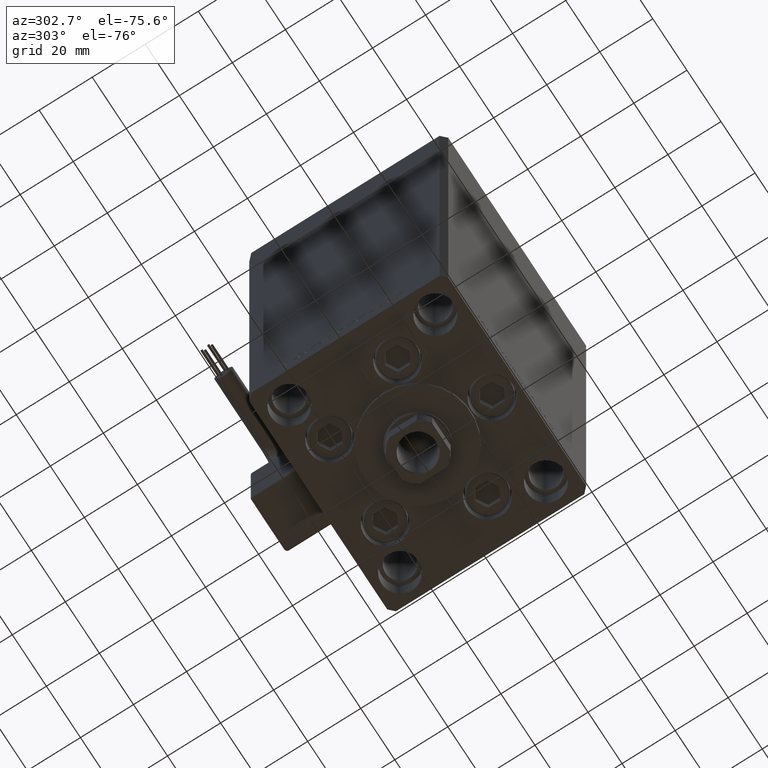
[diagram: clean part render]
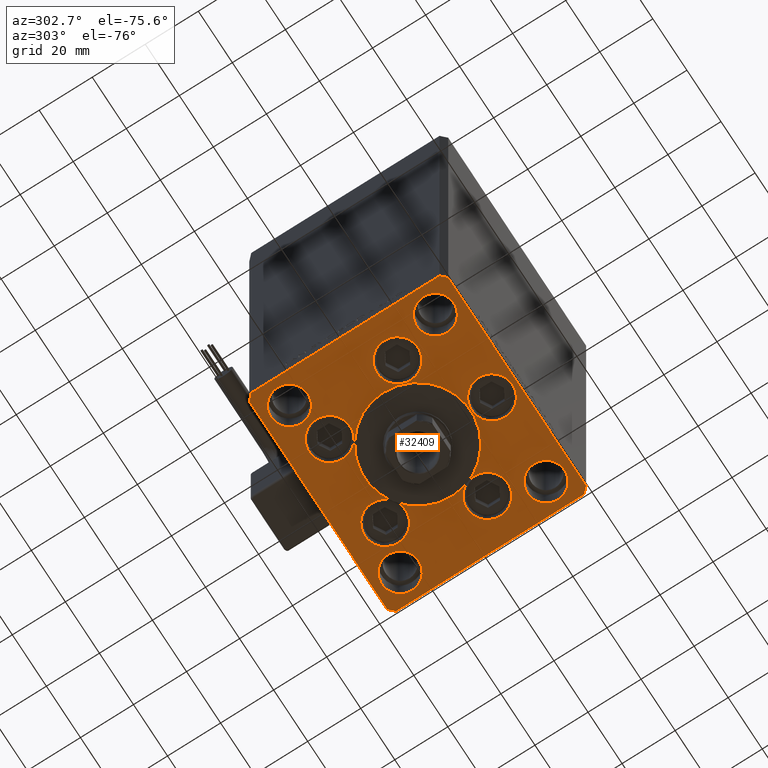
[diagram: same view with one face highlighted and labeled with its STEP entity id]
A machine part, auxiliary view. The second image highlights one B-rep face of the part: STEP entity #32409.
In plain terms, the highlighted planar face has unit normal (0, 0, -1).
Its self-contained STEP definition (entity closure, byte-faithful):
#194 = CARTESIAN_POINT ( 'NONE',  ( 40.50000000000000711, 37.50000000000000711, 0.000000000000000000 ) ) ;
#232 = DIRECTION ( 'NONE',  ( -0.000000000000000000, 0.000000000000000000, 1.000000000000000000 ) ) ;
#251 = EDGE_CURVE ( 'NONE', #35752, #2730, #36892, .T. ) ;
#716 = CIRCLE ( 'NONE', #16752, 6.999999999999999112 ) ;
#729 = CARTESIAN_POINT ( 'NONE',  ( 42.50000000000000711, -35.49999999999992895, 0.000000000000000000 ) ) ;
#955 = DIRECTION ( 'NONE',  ( 0.000000000000000000, 0.000000000000000000, 1.000000000000000000 ) ) ;
#1133 = CARTESIAN_POINT ( 'NONE',  ( -42.50000000000000000, -35.50000000000004263, 0.000000000000000000 ) ) ;
#1559 = CIRCLE ( 'NONE', #48775, 20.00000000000000000 ) ;
#1885 = CARTESIAN_POINT ( 'NONE',  ( 8.572913342905442491, 22.74999999999999289, 0.000000000000000000 ) ) ;
#2234 = VERTEX_POINT ( 'NONE', #24833 ) ;
#2453 = AXIS2_PLACEMENT_3D ( 'NONE', #5156, #25738, #30194 ) ;
#2730 = VERTEX_POINT ( 'NONE', #9836 ) ;
#2865 = EDGE_CURVE ( 'NONE', #48660, #16624, #1559, .T. ) ;
#3081 = VERTEX_POINT ( 'NONE', #39270 ) ;
#3427 = EDGE_CURVE ( 'NONE', #39209, #7382, #25947, .T. ) ;
#3712 = VERTEX_POINT ( 'NONE', #22036 ) ;
#3989 = ORIENTED_EDGE ( 'NONE', *, *, #11561, .F. ) ;
#4034 = CARTESIAN_POINT ( 'NONE',  ( 25.50000000000000355, 27.49999999999999645, 0.000000000000000000 ) ) ;
#4043 = VERTEX_POINT ( 'NONE', #17636 ) ;
#4199 = FACE_BOUND ( 'NONE', #21041, .T. ) ;
#4391 = DIRECTION ( 'NONE',  ( 1.000000000000000000, 0.000000000000000000, 0.000000000000000000 ) ) ;
#5010 = EDGE_LOOP ( 'NONE', ( #3989, #9957 ) ) ;
#5156 = CARTESIAN_POINT ( 'NONE',  ( -32.50000000000000000, -27.50000000000000355, 0.000000000000000000 ) ) ;
#5828 = VERTEX_POINT ( 'NONE', #21992 ) ;
#6230 = DIRECTION ( 'NONE',  ( -1.000000000000000000, -4.283267841918041508E-16, 0.000000000000000000 ) ) ;
#6385 = CARTESIAN_POINT ( 'NONE',  ( 20.00000000000000000, -4.489600305612522259E-15, 0.000000000000000000 ) ) ;
#6935 = DIRECTION ( 'NONE',  ( 0.000000000000000000, 0.000000000000000000, 1.000000000000000000 ) ) ;
#6986 = ORIENTED_EDGE ( 'NONE', *, *, #42791, .F. ) ;
#7059 = AXIS2_PLACEMENT_3D ( 'NONE', #20579, #232, #48020 ) ;
#7315 = DIRECTION ( 'NONE',  ( 0.000000000000000000, 0.000000000000000000, 1.000000000000000000 ) ) ;
#7382 = VERTEX_POINT ( 'NONE', #48632 ) ;
#7807 = DIRECTION ( 'NONE',  ( 0.000000000000000000, 0.000000000000000000, 1.000000000000000000 ) ) ;
#8019 = ORIENTED_EDGE ( 'NONE', *, *, #27601, .F. ) ;
#8091 = EDGE_CURVE ( 'NONE', #15262, #27786, #25235, .T. ) ;
#8633 = DIRECTION ( 'NONE',  ( 0.000000000000000000, 0.000000000000000000, 1.000000000000000000 ) ) ;
#8682 = VECTOR ( 'NONE', #16788, 1000.000000000000000 ) ;
#8683 = LINE ( 'NONE', #16346, #33595 ) ;
#8943 = FACE_BOUND ( 'NONE', #9853, .T. ) ;
#9123 = CARTESIAN_POINT ( 'NONE',  ( 40.50000000000001421, -37.49999999999992184, 0.000000000000000000 ) ) ;
#9136 = CIRCLE ( 'NONE', #20094, 6.999999999999999112 ) ;
#9836 = CARTESIAN_POINT ( 'NONE',  ( 25.50000000000000355, -27.50000000000000355, 0.000000000000000000 ) ) ;
#9853 = EDGE_LOOP ( 'NONE', ( #19588, #17814 ) ) ;
#9911 = EDGE_CURVE ( 'NONE', #5828, #3081, #47226, .T. ) ;
#9957 = ORIENTED_EDGE ( 'NONE', *, *, #40536, .F. ) ;
#10069 = DIRECTION ( 'NONE',  ( 0.000000000000000000, 0.000000000000000000, 1.000000000000000000 ) ) ;
#10261 = CARTESIAN_POINT ( 'NONE',  ( -8.572913342905440715, 22.74999999999999289, 0.000000000000000000 ) ) ;
#10262 = EDGE_CURVE ( 'NONE', #27786, #15262, #45549, .T. ) ;
#11165 = EDGE_CURVE ( 'NONE', #4043, #36309, #14039, .T. ) ;
#11500 = CARTESIAN_POINT ( 'NONE',  ( 26.39865316429777664, -9.333333333333330373, 0.000000000000000000 ) ) ;
#11561 = EDGE_CURVE ( 'NONE', #3712, #22591, #16943, .T. ) ;
#11595 = DIRECTION ( 'NONE',  ( 1.000000000000000000, 1.370645709413773283E-15, 0.000000000000000000 ) ) ;
#12145 = DIRECTION ( 'NONE',  ( 9.773090005503134168E-17, -1.000000000000000000, 0.000000000000000000 ) ) ;
#12173 = CARTESIAN_POINT ( 'NONE',  ( 42.50000000000000711, -35.49999999999992895, 0.000000000000000000 ) ) ;
#12193 = VERTEX_POINT ( 'NONE', #1133 ) ;
#12232 = CIRCLE ( 'NONE', #21544, 6.999999999999999112 ) ;
#12295 = CARTESIAN_POINT ( 'NONE',  ( -42.50000000000000000, -35.50000000000004263, 0.000000000000000000 ) ) ;
#12486 = AXIS2_PLACEMENT_3D ( 'NONE', #51703, #15549, #47735 ) ;
#12939 = CARTESIAN_POINT ( 'NONE',  ( -42.50000000000000711, 35.50000000000000000, 0.000000000000000000 ) ) ;
#13268 = CARTESIAN_POINT ( 'NONE',  ( 42.50000000000001421, 35.50000000000002132, 0.000000000000000000 ) ) ;
#13651 = CARTESIAN_POINT ( 'NONE',  ( -26.39865316429777664, -9.333333333333330373, 0.000000000000000000 ) ) ;
#13761 = EDGE_CURVE ( 'NONE', #47249, #39765, #41453, .T. ) ;
#13909 = ORIENTED_EDGE ( 'NONE', *, *, #9911, .F. ) ;
#13981 = DIRECTION ( 'NONE',  ( 1.000000000000000000, 0.000000000000000000, 0.000000000000000000 ) ) ;
#14039 = LINE ( 'NONE', #13268, #35449 ) ;
#14178 = CARTESIAN_POINT ( 'NONE',  ( -40.50000000000000000, 37.49999999999997158, 0.000000000000000000 ) ) ;
#14333 = DIRECTION ( 'NONE',  ( 1.000000000000000000, 0.000000000000000000, 0.000000000000000000 ) ) ;
#14504 = CARTESIAN_POINT ( 'NONE',  ( 16.32291334290544071, 22.74999999999999289, 0.000000000000000000 ) ) ;
#14613 = CIRCLE ( 'NONE', #48332, 6.999999999999999112 ) ;
#14725 = EDGE_LOOP ( 'NONE', ( #44977, #49217 ) ) ;
#14836 = VECTOR ( 'NONE', #46894, 1000.000000000000000 ) ;
#15052 = LINE ( 'NONE', #31129, #50134 ) ;
#15174 = CARTESIAN_POINT ( 'NONE',  ( 0.000000000000000000, -28.00000000000000000, 0.000000000000000000 ) ) ;
#15262 = VERTEX_POINT ( 'NONE', #32851 ) ;
#15355 = AXIS2_PLACEMENT_3D ( 'NONE', #45888, #17134, #41896 ) ;
#15549 = DIRECTION ( 'NONE',  ( 0.000000000000000000, 0.000000000000000000, 1.000000000000000000 ) ) ;
#16034 = EDGE_CURVE ( 'NONE', #12193, #16428, #20744, .T. ) ;
#16346 = CARTESIAN_POINT ( 'NONE',  ( 40.50000000000001421, -37.49999999999992184, 0.000000000000000000 ) ) ;
#16428 = VERTEX_POINT ( 'NONE', #36230 ) ;
#16611 = FACE_BOUND ( 'NONE', #50195, .T. ) ;
#16624 = VERTEX_POINT ( 'NONE', #6385 ) ;
#16747 = ORIENTED_EDGE ( 'NONE', *, *, #27173, .F. ) ;
#16752 = AXIS2_PLACEMENT_3D ( 'NONE', #34000, #46152, #34778 ) ;
#16753 = ORIENTED_EDGE ( 'NONE', *, *, #16034, .T. ) ;
#16788 = DIRECTION ( 'NONE',  ( 0.7071067811865487940, -0.7071067811865463515, 0.000000000000000000 ) ) ;
#16943 = CIRCLE ( 'NONE', #46430, 7.750000000000000000 ) ;
#16968 = DIRECTION ( 'NONE',  ( -0.7071067811865524577, 0.7071067811865426878, 0.000000000000000000 ) ) ;
#17134 = DIRECTION ( 'NONE',  ( 0.000000000000000000, 0.000000000000000000, 1.000000000000000000 ) ) ;
#17152 = CIRCLE ( 'NONE', #33148, 7.750000000000000000 ) ;
#17636 = CARTESIAN_POINT ( 'NONE',  ( 42.50000000000001421, 35.50000000000002132, 0.000000000000000000 ) ) ;
#17814 = ORIENTED_EDGE ( 'NONE', *, *, #8091, .F. ) ;
#18293 = CIRCLE ( 'NONE', #27549, 6.999999999999999112 ) ;
#18333 = AXIS2_PLACEMENT_3D ( 'NONE', #26363, #46422, #18441 ) ;
#18441 = DIRECTION ( 'NONE',  ( 1.000000000000000000, 0.000000000000000000, 0.000000000000000000 ) ) ;
#18656 = ORIENTED_EDGE ( 'NONE', *, *, #38643, .F. ) ;
#18767 = ORIENTED_EDGE ( 'NONE', *, *, #24979, .T. ) ;
#18792 = VERTEX_POINT ( 'NONE', #729 ) ;
#18923 = LINE ( 'NONE', #14178, #14836 ) ;
#19075 = ORIENTED_EDGE ( 'NONE', *, *, #22394, .F. ) ;
#19267 = AXIS2_PLACEMENT_3D ( 'NONE', #43220, #7315, #31839 ) ;
#19424 = ORIENTED_EDGE ( 'NONE', *, *, #42467, .F. ) ;
#19588 = ORIENTED_EDGE ( 'NONE', *, *, #10262, .F. ) ;
#20094 = AXIS2_PLACEMENT_3D ( 'NONE', #48555, #6935, #40628 ) ;
#20153 = VECTOR ( 'NONE', #6230, 1000.000000000000000 ) ;
#20167 = DIRECTION ( 'NONE',  ( 0.000000000000000000, 0.000000000000000000, 1.000000000000000000 ) ) ;
#20238 = EDGE_LOOP ( 'NONE', ( #50830, #32247 ) ) ;
#20452 = DIRECTION ( 'NONE',  ( 0.000000000000000000, 0.000000000000000000, 1.000000000000000000 ) ) ;
#20579 = CARTESIAN_POINT ( 'NONE',  ( 0.000000000000000000, 0.000000000000000000, 0.000000000000000000 ) ) ;
#20596 = ORIENTED_EDGE ( 'NONE', *, *, #34408, .F. ) ;
#20713 = EDGE_LOOP ( 'NONE', ( #13909, #8019 ) ) ;
#20744 = LINE ( 'NONE', #12295, #8682 ) ;
#20831 = FACE_BOUND ( 'NONE', #5010, .T. ) ;
#20981 = VERTEX_POINT ( 'NONE', #29028 ) ;
#21041 = EDGE_LOOP ( 'NONE', ( #19424, #18656 ) ) ;
#21544 = AXIS2_PLACEMENT_3D ( 'NONE', #28880, #20452, #24124 ) ;
#21820 = VERTEX_POINT ( 'NONE', #30843 ) ;
#21864 = EDGE_LOOP ( 'NONE', ( #26210, #47386 ) ) ;
#21992 = CARTESIAN_POINT ( 'NONE',  ( 7.750000000000000000, -28.00000000000000000, 0.000000000000000000 ) ) ;
#22036 = CARTESIAN_POINT ( 'NONE',  ( 24.07291334290544071, 22.74999999999999289, 0.000000000000000000 ) ) ;
#22064 = CARTESIAN_POINT ( 'NONE',  ( -39.50000000000000000, 27.50000000000000711, 0.000000000000000000 ) ) ;
#22394 = EDGE_CURVE ( 'NONE', #44136, #31988, #49810, .T. ) ;
#22591 = VERTEX_POINT ( 'NONE', #1885 ) ;
#23333 = DIRECTION ( 'NONE',  ( 1.000000000000000000, 0.000000000000000000, 0.000000000000000000 ) ) ;
#23429 = CIRCLE ( 'NONE', #19267, 7.750000000000000000 ) ;
#23674 = VERTEX_POINT ( 'NONE', #4034 ) ;
#23991 = FACE_BOUND ( 'NONE', #20713, .T. ) ;
#24124 = DIRECTION ( 'NONE',  ( 1.000000000000000000, 0.000000000000000000, 0.000000000000000000 ) ) ;
#24301 = VERTEX_POINT ( 'NONE', #9123 ) ;
#24457 = AXIS2_PLACEMENT_3D ( 'NONE', #30337, #29833, #41694 ) ;
#24692 = ORIENTED_EDGE ( 'NONE', *, *, #36388, .T. ) ;
#24833 = CARTESIAN_POINT ( 'NONE',  ( -25.50000000000000355, 27.50000000000000711, 0.000000000000000000 ) ) ;
#24942 = ORIENTED_EDGE ( 'NONE', *, *, #46843, .T. ) ;
#24979 = EDGE_CURVE ( 'NONE', #18792, #4043, #32736, .T. ) ;
#25045 = PLANE ( 'NONE',  #7059 ) ;
#25235 = CIRCLE ( 'NONE', #2453, 6.999999999999999112 ) ;
#25699 = ORIENTED_EDGE ( 'NONE', *, *, #48151, .T. ) ;
#25738 = DIRECTION ( 'NONE',  ( 0.000000000000000000, 0.000000000000000000, 1.000000000000000000 ) ) ;
#25947 = CIRCLE ( 'NONE', #33499, 7.750000000000000000 ) ;
#25974 = CARTESIAN_POINT ( 'NONE',  ( 18.64865316429777664, -9.333333333333328596, 0.000000000000000000 ) ) ;
#26175 = DIRECTION ( 'NONE',  ( 1.000000000000000000, 0.000000000000000000, 0.000000000000000000 ) ) ;
#26204 = DIRECTION ( 'NONE',  ( 0.000000000000000000, 0.000000000000000000, 1.000000000000000000 ) ) ;
#26210 = ORIENTED_EDGE ( 'NONE', *, *, #2865, .F. ) ;
#26363 = CARTESIAN_POINT ( 'NONE',  ( 32.50000000000000000, -27.50000000000000355, 0.000000000000000000 ) ) ;
#26553 = ORIENTED_EDGE ( 'NONE', *, *, #43670, .T. ) ;
#26587 = VERTEX_POINT ( 'NONE', #35021 ) ;
#27173 = EDGE_CURVE ( 'NONE', #35023, #2234, #14613, .T. ) ;
#27549 = AXIS2_PLACEMENT_3D ( 'NONE', #32357, #955, #4391 ) ;
#27601 = EDGE_CURVE ( 'NONE', #3081, #5828, #17152, .T. ) ;
#27786 = VERTEX_POINT ( 'NONE', #51739 ) ;
#28143 = CARTESIAN_POINT ( 'NONE',  ( -24.07291334290544071, 22.74999999999999289, 0.000000000000000000 ) ) ;
#28880 = CARTESIAN_POINT ( 'NONE',  ( 32.50000000000000000, -27.50000000000000355, 0.000000000000000000 ) ) ;
#29010 = FACE_BOUND ( 'NONE', #21864, .T. ) ;
#29028 = CARTESIAN_POINT ( 'NONE',  ( -40.50000000000000000, 37.49999999999997158, 0.000000000000000000 ) ) ;
#29833 = DIRECTION ( 'NONE',  ( 0.000000000000000000, 0.000000000000000000, 1.000000000000000000 ) ) ;
#29932 = EDGE_CURVE ( 'NONE', #16624, #48660, #30689, .T. ) ;
#30158 = ORIENTED_EDGE ( 'NONE', *, *, #11165, .T. ) ;
#30194 = DIRECTION ( 'NONE',  ( 1.000000000000000000, 0.000000000000000000, 0.000000000000000000 ) ) ;
#30238 = LINE ( 'NONE', #30505, #20153 ) ;
#30337 = CARTESIAN_POINT ( 'NONE',  ( -32.50000000000000000, -27.50000000000000355, 0.000000000000000000 ) ) ;
#30505 = CARTESIAN_POINT ( 'NONE',  ( 40.50000000000000711, 37.50000000000000711, 0.000000000000000000 ) ) ;
#30689 = CIRCLE ( 'NONE', #40817, 20.00000000000000000 ) ;
#30843 = CARTESIAN_POINT ( 'NONE',  ( 39.50000000000000000, 27.49999999999999645, 0.000000000000000000 ) ) ;
#31129 = CARTESIAN_POINT ( 'NONE',  ( -40.50000000000000711, -37.50000000000003553, 0.000000000000000000 ) ) ;
#31782 = CIRCLE ( 'NONE', #12486, 7.750000000000000000 ) ;
#31839 = DIRECTION ( 'NONE',  ( 1.000000000000000000, 0.000000000000000000, 0.000000000000000000 ) ) ;
#31988 = VERTEX_POINT ( 'NONE', #49137 ) ;
#32163 = DIRECTION ( 'NONE',  ( 0.7071067811865474617, 0.7071067811865474617, 0.000000000000000000 ) ) ;
#32192 = LINE ( 'NONE', #12939, #39401 ) ;
#32247 = ORIENTED_EDGE ( 'NONE', *, *, #35116, .F. ) ;
#32357 = CARTESIAN_POINT ( 'NONE',  ( 32.50000000000000000, 27.49999999999999645, 0.000000000000000000 ) ) ;
#32409 = ADVANCED_FACE ( 'NONE', ( #29010, #48544, #20831, #40875, #23991, #40615, #4199, #16611, #8943, #32954, #36389 ), #25045, .T. ) ;
#32514 = DIRECTION ( 'NONE',  ( 0.000000000000000000, 0.000000000000000000, 1.000000000000000000 ) ) ;
#32538 = DIRECTION ( 'NONE',  ( 0.000000000000000000, 0.000000000000000000, 1.000000000000000000 ) ) ;
#32736 = LINE ( 'NONE', #12173, #44862 ) ;
#32851 = CARTESIAN_POINT ( 'NONE',  ( -39.50000000000000000, -27.50000000000000355, 0.000000000000000000 ) ) ;
#32954 = FACE_BOUND ( 'NONE', #20238, .T. ) ;
#33114 = ORIENTED_EDGE ( 'NONE', *, *, #41715, .F. ) ;
#33148 = AXIS2_PLACEMENT_3D ( 'NONE', #15174, #20167, #23333 ) ;
#33499 = AXIS2_PLACEMENT_3D ( 'NONE', #11500, #7807, #47669 ) ;
#33595 = VECTOR ( 'NONE', #32163, 1000.000000000000114 ) ;
#34000 = CARTESIAN_POINT ( 'NONE',  ( -32.50000000000000000, 27.50000000000000711, 0.000000000000000000 ) ) ;
#34202 = EDGE_LOOP ( 'NONE', ( #6986, #19075 ) ) ;
#34408 = EDGE_CURVE ( 'NONE', #39765, #47249, #44246, .T. ) ;
#34425 = EDGE_CURVE ( 'NONE', #16428, #24301, #15052, .T. ) ;
#34778 = DIRECTION ( 'NONE',  ( 1.000000000000000000, 0.000000000000000000, 0.000000000000000000 ) ) ;
#35021 = CARTESIAN_POINT ( 'NONE',  ( -42.50000000000000711, 35.50000000000000000, 0.000000000000000000 ) ) ;
#35023 = VERTEX_POINT ( 'NONE', #22064 ) ;
#35085 = CARTESIAN_POINT ( 'NONE',  ( -16.32291334290544071, 22.74999999999999289, 0.000000000000000000 ) ) ;
#35116 = EDGE_CURVE ( 'NONE', #2730, #35752, #12232, .T. ) ;
#35351 = DIRECTION ( 'NONE',  ( 0.000000000000000000, 0.000000000000000000, 1.000000000000000000 ) ) ;
#35449 = VECTOR ( 'NONE', #16968, 1000.000000000000000 ) ;
#35610 = DIRECTION ( 'NONE',  ( 1.000000000000000000, 0.000000000000000000, 0.000000000000000000 ) ) ;
#35752 = VERTEX_POINT ( 'NONE', #49533 ) ;
#36230 = CARTESIAN_POINT ( 'NONE',  ( -40.50000000000000711, -37.50000000000003553, 0.000000000000000000 ) ) ;
#36309 = VERTEX_POINT ( 'NONE', #194 ) ;
#36388 = EDGE_CURVE ( 'NONE', #20981, #26587, #18923, .T. ) ;
#36389 = FACE_OUTER_BOUND ( 'NONE', #44196, .T. ) ;
#36892 = CIRCLE ( 'NONE', #18333, 6.999999999999999112 ) ;
#37287 = CARTESIAN_POINT ( 'NONE',  ( 0.000000000000000000, -28.00000000000000000, 0.000000000000000000 ) ) ;
#37849 = CARTESIAN_POINT ( 'NONE',  ( -34.14865316429777664, -9.333333333333328596, 0.000000000000000000 ) ) ;
#38490 = DIRECTION ( 'NONE',  ( 0.000000000000000000, 0.000000000000000000, 1.000000000000000000 ) ) ;
#38643 = EDGE_CURVE ( 'NONE', #23674, #21820, #18293, .T. ) ;
#38821 = AXIS2_PLACEMENT_3D ( 'NONE', #40165, #32514, #48374 ) ;
#39209 = VERTEX_POINT ( 'NONE', #25974 ) ;
#39270 = CARTESIAN_POINT ( 'NONE',  ( -7.750000000000000000, -28.00000000000000000, 0.000000000000000000 ) ) ;
#39401 = VECTOR ( 'NONE', #12145, 1000.000000000000000 ) ;
#39765 = VERTEX_POINT ( 'NONE', #10261 ) ;
#40165 = CARTESIAN_POINT ( 'NONE',  ( -26.39865316429777664, -9.333333333333330373, 0.000000000000000000 ) ) ;
#40458 = DIRECTION ( 'NONE',  ( 1.000000000000000000, 0.000000000000000000, 0.000000000000000000 ) ) ;
#40536 = EDGE_CURVE ( 'NONE', #22591, #3712, #31782, .T. ) ;
#40615 = FACE_BOUND ( 'NONE', #34202, .T. ) ;
#40628 = DIRECTION ( 'NONE',  ( 1.000000000000000000, 0.000000000000000000, 0.000000000000000000 ) ) ;
#40817 = AXIS2_PLACEMENT_3D ( 'NONE', #46502, #10069, #26175 ) ;
#40875 = FACE_BOUND ( 'NONE', #14725, .T. ) ;
#41453 = CIRCLE ( 'NONE', #15355, 7.750000000000000000 ) ;
#41694 = DIRECTION ( 'NONE',  ( 1.000000000000000000, 0.000000000000000000, 0.000000000000000000 ) ) ;
#41715 = EDGE_CURVE ( 'NONE', #2234, #35023, #716, .T. ) ;
#41836 = EDGE_CURVE ( 'NONE', #7382, #39209, #23429, .T. ) ;
#41895 = CIRCLE ( 'NONE', #46996, 7.750000000000000000 ) ;
#41896 = DIRECTION ( 'NONE',  ( 1.000000000000000000, 0.000000000000000000, 0.000000000000000000 ) ) ;
#42186 = CARTESIAN_POINT ( 'NONE',  ( -20.00000000000000000, -6.938893903907228378E-15, 0.000000000000000000 ) ) ;
#42467 = EDGE_CURVE ( 'NONE', #21820, #23674, #9136, .T. ) ;
#42791 = EDGE_CURVE ( 'NONE', #31988, #44136, #41895, .T. ) ;
#43068 = CARTESIAN_POINT ( 'NONE',  ( 0.000000000000000000, -6.938893903907228378E-15, 0.000000000000000000 ) ) ;
#43130 = ORIENTED_EDGE ( 'NONE', *, *, #34425, .T. ) ;
#43220 = CARTESIAN_POINT ( 'NONE',  ( 26.39865316429777664, -9.333333333333330373, 0.000000000000000000 ) ) ;
#43284 = CARTESIAN_POINT ( 'NONE',  ( -32.50000000000000000, 27.50000000000000711, 0.000000000000000000 ) ) ;
#43670 = EDGE_CURVE ( 'NONE', #26587, #12193, #32192, .T. ) ;
#44136 = VERTEX_POINT ( 'NONE', #37849 ) ;
#44196 = EDGE_LOOP ( 'NONE', ( #16753, #43130, #24942, #18767, #30158, #25699, #24692, #26553 ) ) ;
#44246 = CIRCLE ( 'NONE', #51005, 7.750000000000000000 ) ;
#44862 = VECTOR ( 'NONE', #45164, 1000.000000000000000 ) ;
#44977 = ORIENTED_EDGE ( 'NONE', *, *, #41836, .F. ) ;
#45164 = DIRECTION ( 'NONE',  ( 9.773090005503145261E-17, 1.000000000000000000, 0.000000000000000000 ) ) ;
#45549 = CIRCLE ( 'NONE', #24457, 6.999999999999999112 ) ;
#45888 = CARTESIAN_POINT ( 'NONE',  ( -16.32291334290544071, 22.74999999999999289, 0.000000000000000000 ) ) ;
#46059 = ORIENTED_EDGE ( 'NONE', *, *, #13761, .F. ) ;
#46152 = DIRECTION ( 'NONE',  ( 0.000000000000000000, 0.000000000000000000, 1.000000000000000000 ) ) ;
#46422 = DIRECTION ( 'NONE',  ( 0.000000000000000000, 0.000000000000000000, 1.000000000000000000 ) ) ;
#46430 = AXIS2_PLACEMENT_3D ( 'NONE', #14504, #38490, #13981 ) ;
#46502 = CARTESIAN_POINT ( 'NONE',  ( 0.000000000000000000, -6.938893903907228378E-15, 0.000000000000000000 ) ) ;
#46843 = EDGE_CURVE ( 'NONE', #24301, #18792, #8683, .T. ) ;
#46894 = DIRECTION ( 'NONE',  ( -0.7071067811865536790, -0.7071067811865414665, 0.000000000000000000 ) ) ;
#46996 = AXIS2_PLACEMENT_3D ( 'NONE', #13651, #8633, #49021 ) ;
#47226 = CIRCLE ( 'NONE', #48048, 7.750000000000000000 ) ;
#47249 = VERTEX_POINT ( 'NONE', #28143 ) ;
#47386 = ORIENTED_EDGE ( 'NONE', *, *, #29932, .F. ) ;
#47669 = DIRECTION ( 'NONE',  ( 1.000000000000000000, 0.000000000000000000, 0.000000000000000000 ) ) ;
#47698 = EDGE_LOOP ( 'NONE', ( #20596, #46059 ) ) ;
#47735 = DIRECTION ( 'NONE',  ( 1.000000000000000000, 0.000000000000000000, 0.000000000000000000 ) ) ;
#47758 = DIRECTION ( 'NONE',  ( 1.000000000000000000, 0.000000000000000000, 0.000000000000000000 ) ) ;
#48020 = DIRECTION ( 'NONE',  ( 1.000000000000000000, 0.000000000000000000, 0.000000000000000000 ) ) ;
#48048 = AXIS2_PLACEMENT_3D ( 'NONE', #37287, #32538, #40458 ) ;
#48151 = EDGE_CURVE ( 'NONE', #36309, #20981, #30238, .T. ) ;
#48332 = AXIS2_PLACEMENT_3D ( 'NONE', #43284, #35351, #35610 ) ;
#48374 = DIRECTION ( 'NONE',  ( 1.000000000000000000, 0.000000000000000000, 0.000000000000000000 ) ) ;
#48544 = FACE_BOUND ( 'NONE', #47698, .T. ) ;
#48555 = CARTESIAN_POINT ( 'NONE',  ( 32.50000000000000000, 27.49999999999999645, 0.000000000000000000 ) ) ;
#48632 = CARTESIAN_POINT ( 'NONE',  ( 34.14865316429777664, -9.333333333333330373, 0.000000000000000000 ) ) ;
#48660 = VERTEX_POINT ( 'NONE', #42186 ) ;
#48775 = AXIS2_PLACEMENT_3D ( 'NONE', #43068, #26204, #14333 ) ;
#49021 = DIRECTION ( 'NONE',  ( 1.000000000000000000, 0.000000000000000000, 0.000000000000000000 ) ) ;
#49137 = CARTESIAN_POINT ( 'NONE',  ( -18.64865316429777664, -9.333333333333330373, 0.000000000000000000 ) ) ;
#49217 = ORIENTED_EDGE ( 'NONE', *, *, #3427, .F. ) ;
#49533 = CARTESIAN_POINT ( 'NONE',  ( 39.50000000000000000, -27.50000000000000355, 0.000000000000000000 ) ) ;
#49810 = CIRCLE ( 'NONE', #38821, 7.750000000000000000 ) ;
#50134 = VECTOR ( 'NONE', #11595, 1000.000000000000000 ) ;
#50195 = EDGE_LOOP ( 'NONE', ( #33114, #16747 ) ) ;
#50830 = ORIENTED_EDGE ( 'NONE', *, *, #251, .F. ) ;
#51005 = AXIS2_PLACEMENT_3D ( 'NONE', #35085, #51205, #47758 ) ;
#51205 = DIRECTION ( 'NONE',  ( 0.000000000000000000, 0.000000000000000000, 1.000000000000000000 ) ) ;
#51703 = CARTESIAN_POINT ( 'NONE',  ( 16.32291334290544071, 22.74999999999999289, 0.000000000000000000 ) ) ;
#51739 = CARTESIAN_POINT ( 'NONE',  ( -25.50000000000000355, -27.50000000000000355, 0.000000000000000000 ) ) ;